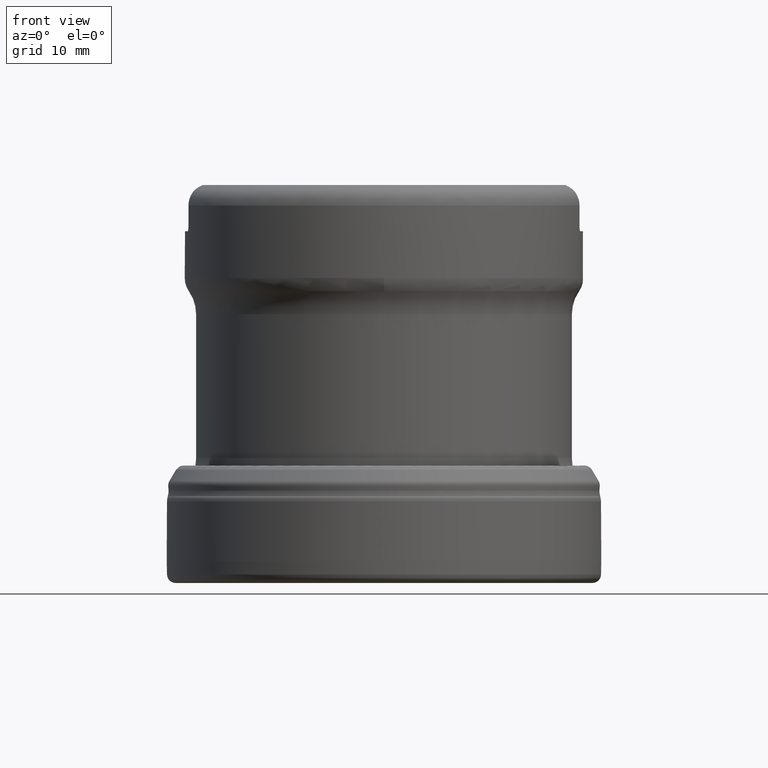
[diagram: clean part render]
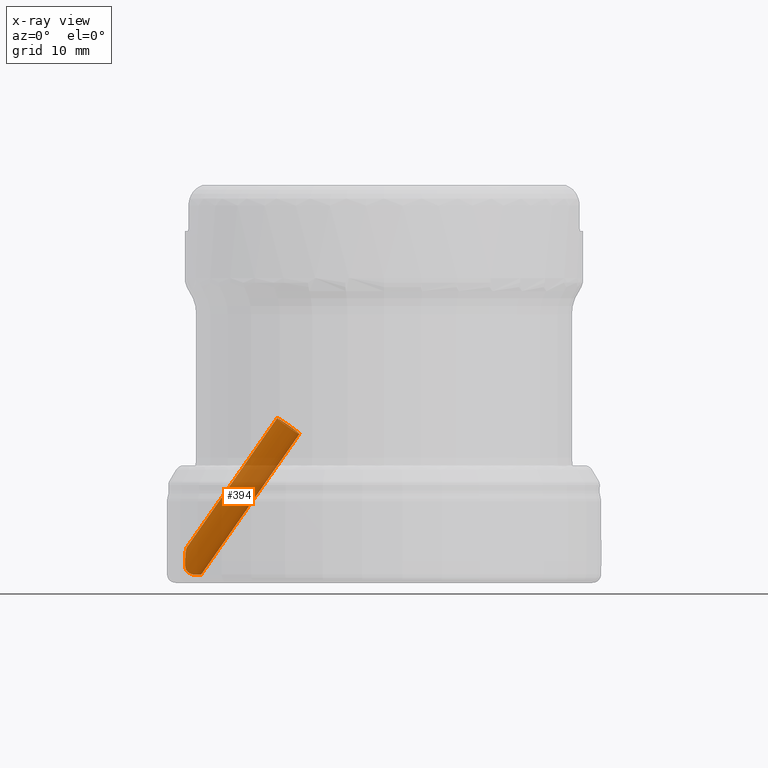
[diagram: x-ray — body ghosted, one internal face saturated and labeled with its STEP entity id]
A machine part, front view, then the same camera in x-ray: the body is ghosted and one INTERNAL B-rep face — a face not visible from any outside direction — is saturated and labeled: STEP entity #394.
In plain terms, the highlighted cylindrical surface (bore or boss wall) has radius 1.2 mm, axis along (-0.5723, 0.0503, -0.8185).
Its self-contained STEP definition (entity closure, byte-faithful):
#167=CYLINDRICAL_SURFACE('',#1815,1.2);
#226=FACE_BOUND('',#597,.T.);
#227=FACE_BOUND('',#598,.T.);
#321=ELLIPSE('',#1695,1.4660370414489,1.2);
#329=ELLIPSE('',#1747,1.4660370414489,1.2);
#394=ADVANCED_FACE('',(#226,#227),#167,.F.);
#597=EDGE_LOOP('',(#904));
#598=EDGE_LOOP('',(#905,#906,#907,#908,#909,#910));
#904=ORIENTED_EDGE('',*,*,#1362,.T.);
#905=ORIENTED_EDGE('',*,*,#1355,.T.);
#906=ORIENTED_EDGE('',*,*,#1228,.F.);
#907=ORIENTED_EDGE('',*,*,#1359,.T.);
#908=ORIENTED_EDGE('',*,*,#1302,.F.);
#909=ORIENTED_EDGE('',*,*,#1245,.T.);
#910=ORIENTED_EDGE('',*,*,#1298,.F.);
#1063=VERTEX_POINT('',#2571);
#1066=VERTEX_POINT('',#2576);
#1081=VERTEX_POINT('',#2715);
#1082=VERTEX_POINT('',#2735);
#1122=VERTEX_POINT('',#3031);
#1123=VERTEX_POINT('',#3096);
#1158=VERTEX_POINT('',#3456);
#1228=EDGE_CURVE('',#1066,#1063,#321,.T.);
#1245=EDGE_CURVE('',#1082,#1081,#1564,.T.);
#1298=EDGE_CURVE('',#1122,#1081,#1583,.T.);
#1302=EDGE_CURVE('',#1082,#1123,#329,.T.);
#1355=EDGE_CURVE('',#1122,#1063,#1604,.T.);
#1359=EDGE_CURVE('',#1066,#1123,#1607,.T.);
#1362=EDGE_CURVE('',#1158,#1158,#1498,.T.);
#1498=CIRCLE('',#1814,1.2);
#1564=B_SPLINE_CURVE_WITH_KNOTS('',3,(#2716,#2717,#2718,#2719,#2720,#2721,
#2722,#2723,#2724,#2725,#2726,#2727,#2728,#2729,#2730,#2731,#2732,#2733,
#2734),.UNSPECIFIED.,.F.,.F.,(4,3,3,3,3,3,4),(0.,0.0613597483649623,0.290856224040627,
0.479662181219645,0.670164623209673,0.837256450344828,1.),.UNSPECIFIED.);
#1583=B_SPLINE_CURVE_WITH_KNOTS('',3,(#3032,#3033,#3034,#3035,#3036,#3037,
#3038,#3039,#3040,#3041,#3042,#3043,#3044,#3045,#3046,#3047,#3048,#3049,
#3050,#3051,#3052,#3053,#3054,#3055,#3056,#3057,#3058,#3059,#3060,#3061,
#3062),.UNSPECIFIED.,.F.,.F.,(4,3,3,3,3,3,3,3,3,3,4),(0.,0.205222063013765,
0.29703916710752,0.37466800083815,0.434943974061537,0.495540830834049,0.552025673187207,
0.632328834715808,0.749652731187214,0.928186216810962,1.),.UNSPECIFIED.);
#1604=B_SPLINE_CURVE_WITH_KNOTS('',3,(#3372,#3373,#3374,#3375,#3376,#3377,
#3378,#3379,#3380,#3381,#3382,#3383,#3384,#3385,#3386,#3387),
 .UNSPECIFIED.,.F.,.F.,(4,3,3,3,3,4),(0.,0.197096880099198,0.394926873634662,
0.584328998393717,0.776063317817801,1.),.UNSPECIFIED.);
#1607=B_SPLINE_CURVE_WITH_KNOTS('',3,(#3418,#3419,#3420,#3421,#3422,#3423,
#3424,#3425,#3426,#3427,#3428,#3429,#3430),.UNSPECIFIED.,.F.,.F.,(4,3,3,
3,4),(0.,0.0614090811760088,0.364133591023372,0.670667797151469,1.),
 .UNSPECIFIED.);
#1695=AXIS2_PLACEMENT_3D('',#2577,#1887,#1888);
#1747=AXIS2_PLACEMENT_3D('',#3099,#2003,#2004);
#1814=AXIS2_PLACEMENT_3D('',#3455,#2145,#2146);
#1815=AXIS2_PLACEMENT_3D('',#3457,#2147,#2148);
#1887=DIRECTION('',(0.,1.17145536458252E-15,1.));
#1888=DIRECTION('',(-0.996160881055041,0.087541413374723,-1.02550858320956E-16));
#2003=DIRECTION('',(0.,1.17145536458252E-15,1.));
#2004=DIRECTION('',(-0.996160881055041,0.087541413374723,-1.02550858320956E-16));
#2145=DIRECTION('',(0.572253798254636,-0.0502889716520553,0.818533206237427));
#2146=DIRECTION('',(-0.819073739996121,0.0142969853126291,0.573510073721236));
#2147=DIRECTION('',(-0.572253798254636,0.0502889716520554,-0.818533206237426));
#2148=DIRECTION('',(-0.819073739996121,0.0142969853126291,0.573510073721236));
#2571=CARTESIAN_POINT('',(-16.1939423504494,5.33298602605871,0.699999999999996));
#2576=CARTESIAN_POINT('',(-16.0957662960748,5.08911070275403,0.699999999999997));
#2577=CARTESIAN_POINT('',(-17.5257364102966,4.87214927945946,0.699999999999995));
#2715=CARTESIAN_POINT('',(-17.4606328533017,3.69903587810914,1.45407332298007));
#2716=CARTESIAN_POINT('',(-16.5929210519168,3.91911721803153,0.699999999999998));
#2717=CARTESIAN_POINT('',(-16.615869277784,3.90421427139486,0.699999999999986));
#2718=CARTESIAN_POINT('',(-16.6391142556811,3.88973982454906,0.700670600770494));
#2719=CARTESIAN_POINT('',(-16.6625825009073,3.87574276306446,0.702099804990373));
#2720=CARTESIAN_POINT('',(-16.7499667045145,3.82362458981024,0.707421458626693));
#2721=CARTESIAN_POINT('',(-16.8419549384747,3.77740281190458,0.723512660214527));
#2722=CARTESIAN_POINT('',(-16.9318915791398,3.74109810230651,0.754721501073144));
#2723=CARTESIAN_POINT('',(-17.005880034861,3.71123119401746,0.780396175187093));
#2724=CARTESIAN_POINT('',(-17.0800791981251,3.68758935361402,0.817129603767279));
#2725=CARTESIAN_POINT('',(-17.1472022298851,3.67246794401384,0.864997696069526));
#2726=CARTESIAN_POINT('',(-17.2146955521359,3.6572631157415,0.913129857185757));
#2727=CARTESIAN_POINT('',(-17.2767809497149,3.65042102691549,0.974219476363738));
#2728=CARTESIAN_POINT('',(-17.3255325020054,3.65113843952904,1.04296547081701));
#2729=CARTESIAN_POINT('',(-17.3685064699681,3.65177083101655,1.10356432407204));
#2730=CARTESIAN_POINT('',(-17.4023985145578,3.65809742072737,1.1715963974053));
#2731=CARTESIAN_POINT('',(-17.4249422371242,3.66721620856807,1.24179619183841));
#2732=CARTESIAN_POINT('',(-17.4469516997831,3.67611889178215,1.31033233309417));
#2733=CARTESIAN_POINT('',(-17.4588084037422,3.68777385131472,1.38244431342765));
#2734=CARTESIAN_POINT('',(-17.4606328533017,3.69903587810914,1.45407332298007));
#2735=CARTESIAN_POINT('',(-16.5929210519168,3.91911721803153,0.699999999999998));
#3031=CARTESIAN_POINT('',(-16.8053929321406,6.01126729248449,1.45407332297989));
#3032=CARTESIAN_POINT('',(-16.8053929321406,6.01126729248449,1.45407332297989));
#3033=CARTESIAN_POINT('',(-16.8197343233545,6.02412857104239,1.76423347343504));
#3034=CARTESIAN_POINT('',(-16.8501392138526,5.9944199014006,2.08308882503621));
#3035=CARTESIAN_POINT('',(-16.9009104748346,5.89986185603295,2.37472466308256));
#3036=CARTESIAN_POINT('',(-16.9239133406534,5.85702057166062,2.50685571361694));
#3037=CARTESIAN_POINT('',(-16.9515404209735,5.79979948937635,2.63530318457416));
#3038=CARTESIAN_POINT('',(-16.9836849024303,5.72513667779446,2.75026108502659));
#3039=CARTESIAN_POINT('',(-17.0108132789777,5.66212490174791,2.84727995325051));
#3040=CARTESIAN_POINT('',(-17.0418310619755,5.58498262574609,2.93655812529861));
#3041=CARTESIAN_POINT('',(-17.0750225289727,5.49501540297395,3.00672449096861));
#3042=CARTESIAN_POINT('',(-17.1008456497763,5.42502047137866,3.06131426059839));
#3043=CARTESIAN_POINT('',(-17.1285725975697,5.34553184010202,3.10527657213823));
#3044=CARTESIAN_POINT('',(-17.1559573752549,5.2616466315395,3.13283583012627));
#3045=CARTESIAN_POINT('',(-17.1834371641612,5.17747038405816,3.16049070469303));
#3046=CARTESIAN_POINT('',(-17.2112780507301,5.0865859153272,3.1721164025212));
#3047=CARTESIAN_POINT('',(-17.2367873626317,4.99754362598392,3.1669863693351));
#3048=CARTESIAN_POINT('',(-17.2606625585488,4.91420534891929,3.16218496395607));
#3049=CARTESIAN_POINT('',(-17.28310456139,4.83048169369285,3.14292983453604));
#3050=CARTESIAN_POINT('',(-17.3029877527212,4.75152771558985,3.11277564839226));
#3051=CARTESIAN_POINT('',(-17.3311361601394,4.63975346839187,3.07008671064563));
#3052=CARTESIAN_POINT('',(-17.3549874198895,4.53443925062874,3.00478238383966));
#3053=CARTESIAN_POINT('',(-17.3743735725554,4.44068827961508,2.92769092450981));
#3054=CARTESIAN_POINT('',(-17.4026176092438,4.30410079314848,2.81537498213549));
#3055=CARTESIAN_POINT('',(-17.4225470768759,4.18715962944707,2.67516382266545));
#3056=CARTESIAN_POINT('',(-17.4363882862702,4.09038158936088,2.52512659442282));
#3057=CARTESIAN_POINT('',(-17.4573752914948,3.94363998788274,2.29762970428064));
#3058=CARTESIAN_POINT('',(-17.4653473413676,3.837583798397,2.04015037368985));
#3059=CARTESIAN_POINT('',(-17.465048880063,3.76743389644887,1.77783893818894));
#3060=CARTESIAN_POINT('',(-17.4649276249604,3.7389342771692,1.67127034953994));
#3061=CARTESIAN_POINT('',(-17.4634076562585,3.71616427998044,1.56301379023817));
#3062=CARTESIAN_POINT('',(-17.4606328533017,3.69903587810914,1.45407332298007));
#3096=CARTESIAN_POINT('',(-16.3772362971075,4.09376008962389,0.699999999999996));
#3099=CARTESIAN_POINT('',(-17.5257364102966,4.87214927945946,0.699999999999995));
#3372=CARTESIAN_POINT('',(-16.8053929321406,6.01126729248449,1.45407332297989));
#3373=CARTESIAN_POINT('',(-16.8013931876636,6.00768034425106,1.36757116079248));
#3374=CARTESIAN_POINT('',(-16.783954104032,5.99848065475392,1.280711180936));
#3375=CARTESIAN_POINT('',(-16.7561061958128,5.98040610834925,1.20065312077534));
#3376=CARTESIAN_POINT('',(-16.7281892960001,5.96228678329379,1.12039672136798));
#3377=CARTESIAN_POINT('',(-16.6889963497049,5.93452344391389,1.04478635717541));
#3378=CARTESIAN_POINT('',(-16.6441766030192,5.89688201203277,0.980575253817726));
#3379=CARTESIAN_POINT('',(-16.6011976287151,5.86078653507857,0.919001336843203));
#3380=CARTESIAN_POINT('',(-16.5520104247646,5.81467103591311,0.866257168690226));
#3381=CARTESIAN_POINT('',(-16.5024723000711,5.7616470465787,0.825319976587109));
#3382=CARTESIAN_POINT('',(-16.4522279789365,5.70786716765836,0.783799199627844));
#3383=CARTESIAN_POINT('',(-16.4004950308741,5.64585616079366,0.753270860373896));
#3384=CARTESIAN_POINT('',(-16.3517568495609,5.57980550019431,0.733204918608365));
#3385=CARTESIAN_POINT('',(-16.2950734585436,5.50298738099441,0.709867863499214));
#3386=CARTESIAN_POINT('',(-16.241165273616,5.41917560735136,0.69999999999995));
#3387=CARTESIAN_POINT('',(-16.1939423504494,5.33298602605871,0.699999999999996));
#3418=CARTESIAN_POINT('',(-16.0957662960748,5.08911070275403,0.699999999999997));
#3419=CARTESIAN_POINT('',(-16.0899971127208,5.06742993549626,0.699999999999997));
#3420=CARTESIAN_POINT('',(-16.0847528895141,5.04560041203323,0.700272110562041));
#3421=CARTESIAN_POINT('',(-16.0800939927773,5.02365940469882,0.700747530171381));
#3422=CARTESIAN_POINT('',(-16.0573008973252,4.9163156487105,0.703073463787791));
#3423=CARTESIAN_POINT('',(-16.0485642307601,4.80417336794815,0.710288033705633));
#3424=CARTESIAN_POINT('',(-16.0610730486261,4.69518279719987,0.71378118138556));
#3425=CARTESIAN_POINT('',(-16.0736806965317,4.58533111051462,0.717301927830377));
#3426=CARTESIAN_POINT('',(-16.1093264784476,4.47630352734414,0.716124323484119));
#3427=CARTESIAN_POINT('',(-16.1615695538206,4.37888361653479,0.711792630708477));
#3428=CARTESIAN_POINT('',(-16.2178754058073,4.27388767134156,0.707124076062032));
#3429=CARTESIAN_POINT('',(-16.2933013860737,4.17844316696051,0.700000000000108));
#3430=CARTESIAN_POINT('',(-16.3772362971075,4.09376008962389,0.699999999999996));
#3455=CARTESIAN_POINT('',(-8.40125733774711,4.07030109458287,13.7513578647788));
#3456=CARTESIAN_POINT('',(-9.38414582574246,4.08745747695802,14.4395699532443));
#3457=CARTESIAN_POINT('',(-8.28680657809618,4.06024330025246,13.9150645060263));